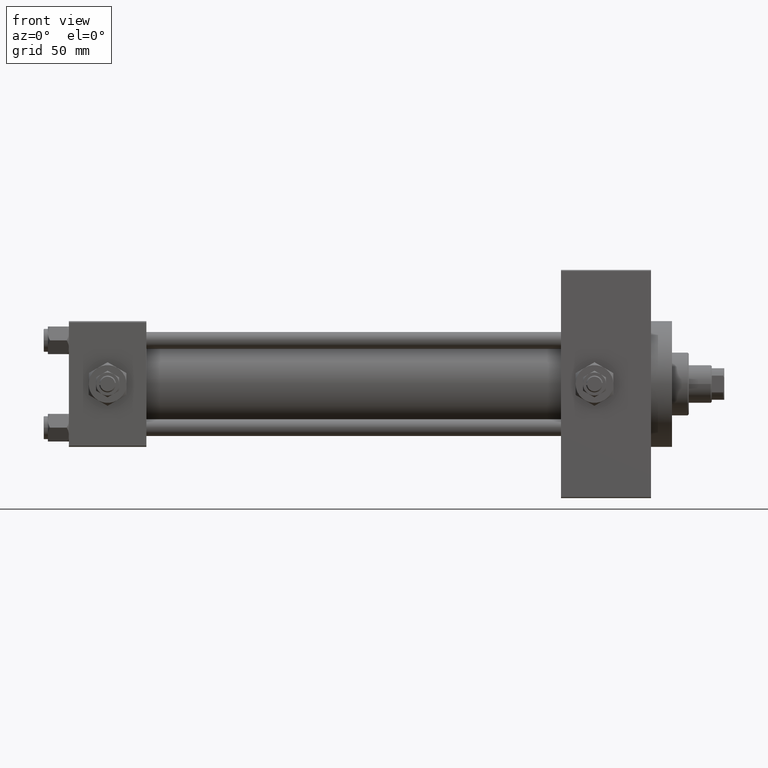
[diagram: clean part render]
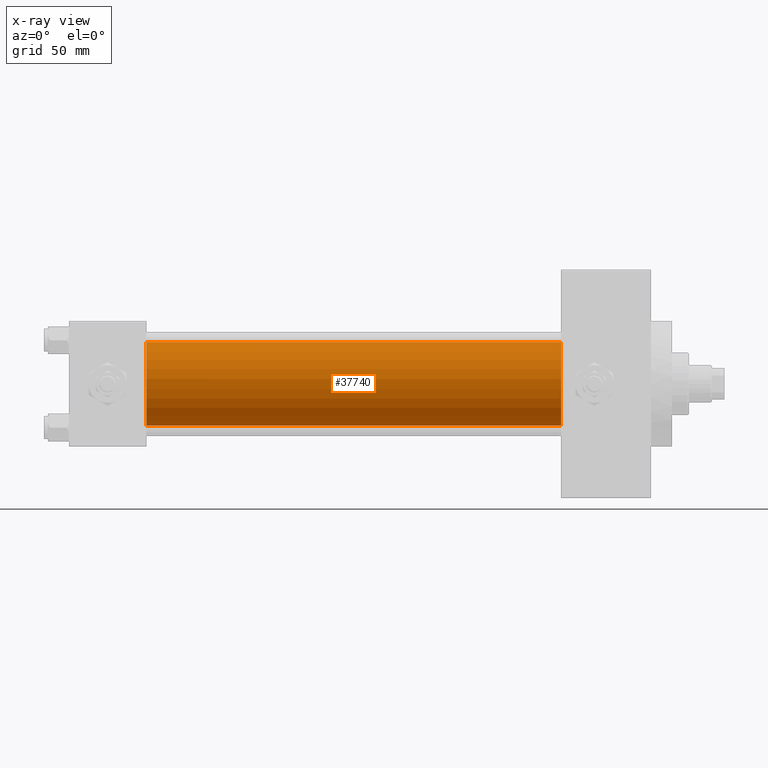
[diagram: x-ray — body ghosted, one internal face saturated and labeled with its STEP entity id]
A machine part, front view, then the same camera in x-ray: the body is ghosted and one INTERNAL B-rep face — a face not visible from any outside direction — is saturated and labeled: STEP entity #37740.
In plain terms, the highlighted cylindrical surface (partial cylindrical patch) has radius 20 mm, axis along (-1, -0, -0).
Its self-contained STEP definition (entity closure, byte-faithful):
#4569 = VERTEX_POINT ( 'NONE', #27674 ) ;
#4633 = VECTOR ( 'NONE', #35788, 1000.000000000000000 ) ;
#4798 = CIRCLE ( 'NONE', #29577, 20.00000000000000000 ) ;
#4928 = CARTESIAN_POINT ( 'NONE',  ( 235.0000000000000284, -2.602085213965210642E-15, 0.000000000000000000 ) ) ;
#5527 = CARTESIAN_POINT ( 'NONE',  ( 235.0000000000000284, -1.527916156705042519E-16, -20.00000000000000000 ) ) ;
#5670 = AXIS2_PLACEMENT_3D ( 'NONE', #8305, #19315, #15559 ) ;
#8305 = CARTESIAN_POINT ( 'NONE',  ( 235.0000000000000284, -2.602085213965210642E-15, 0.000000000000000000 ) ) ;
#9429 = LINE ( 'NONE', #12690, #39790 ) ;
#9522 = CARTESIAN_POINT ( 'NONE',  ( 37.00000000000000000, -1.527916156705042519E-16, -20.00000000000000000 ) ) ;
#10622 = DIRECTION ( 'NONE',  ( 0.000000000000000000, 0.000000000000000000, -1.000000000000000000 ) ) ;
#12690 = CARTESIAN_POINT ( 'NONE',  ( 235.0000000000000284, -1.527916156705042519E-16, -20.00000000000000000 ) ) ;
#13490 = CARTESIAN_POINT ( 'NONE',  ( 37.00000000000000000, -2.602085213965210642E-15, 20.00000000000000000 ) ) ;
#15052 = ORIENTED_EDGE ( 'NONE', *, *, #27720, .T. ) ;
#15559 = DIRECTION ( 'NONE',  ( 0.000000000000000000, 0.000000000000000000, 1.000000000000000000 ) ) ;
#16535 = FACE_OUTER_BOUND ( 'NONE', #39775, .T. ) ;
#19315 = DIRECTION ( 'NONE',  ( -1.000000000000000000, -0.000000000000000000, -0.000000000000000000 ) ) ;
#19437 = DIRECTION ( 'NONE',  ( 0.000000000000000000, 0.000000000000000000, -1.000000000000000000 ) ) ;
#20225 = EDGE_CURVE ( 'NONE', #4569, #31044, #4798, .T. ) ;
#20860 = ORIENTED_EDGE ( 'NONE', *, *, #20225, .T. ) ;
#21775 = EDGE_CURVE ( 'NONE', #23785, #22962, #37602, .T. ) ;
#22962 = VERTEX_POINT ( 'NONE', #9522 ) ;
#23785 = VERTEX_POINT ( 'NONE', #13490 ) ;
#25021 = LINE ( 'NONE', #47056, #4633 ) ;
#25411 = CARTESIAN_POINT ( 'NONE',  ( 37.00000000000000000, -2.602085213965210642E-15, 0.000000000000000000 ) ) ;
#26068 = ORIENTED_EDGE ( 'NONE', *, *, #21775, .F. ) ;
#27244 = EDGE_CURVE ( 'NONE', #4569, #23785, #25021, .T. ) ;
#27458 = DIRECTION ( 'NONE',  ( 1.000000000000000000, 0.000000000000000000, 0.000000000000000000 ) ) ;
#27674 = CARTESIAN_POINT ( 'NONE',  ( 235.0000000000000284, -2.602085213965210642E-15, 20.00000000000000000 ) ) ;
#27720 = EDGE_CURVE ( 'NONE', #31044, #22962, #9429, .T. ) ;
#29175 = DIRECTION ( 'NONE',  ( 1.000000000000000000, 0.000000000000000000, 0.000000000000000000 ) ) ;
#29577 = AXIS2_PLACEMENT_3D ( 'NONE', #4928, #27458, #19437 ) ;
#31044 = VERTEX_POINT ( 'NONE', #5527 ) ;
#35788 = DIRECTION ( 'NONE',  ( -1.000000000000000000, -0.000000000000000000, -0.000000000000000000 ) ) ;
#37602 = CIRCLE ( 'NONE', #44015, 20.00000000000000000 ) ;
#37740 = ADVANCED_FACE ( 'NONE', ( #16535 ), #39587, .F. ) ;
#39587 = CYLINDRICAL_SURFACE ( 'NONE', #5670, 20.00000000000000000 ) ;
#39775 = EDGE_LOOP ( 'NONE', ( #20860, #15052, #26068, #49099 ) ) ;
#39790 = VECTOR ( 'NONE', #43750, 1000.000000000000000 ) ;
#43750 = DIRECTION ( 'NONE',  ( -1.000000000000000000, -0.000000000000000000, -0.000000000000000000 ) ) ;
#44015 = AXIS2_PLACEMENT_3D ( 'NONE', #25411, #29175, #10622 ) ;
#47056 = CARTESIAN_POINT ( 'NONE',  ( 235.0000000000000284, -2.602085213965210642E-15, 20.00000000000000000 ) ) ;
#49099 = ORIENTED_EDGE ( 'NONE', *, *, #27244, .F. ) ;